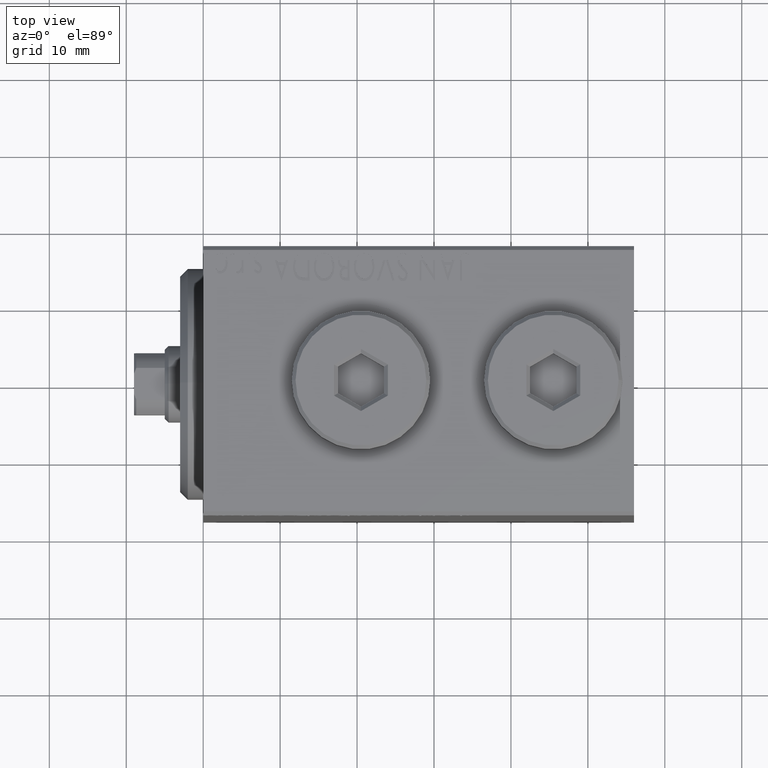
[diagram: clean part render]
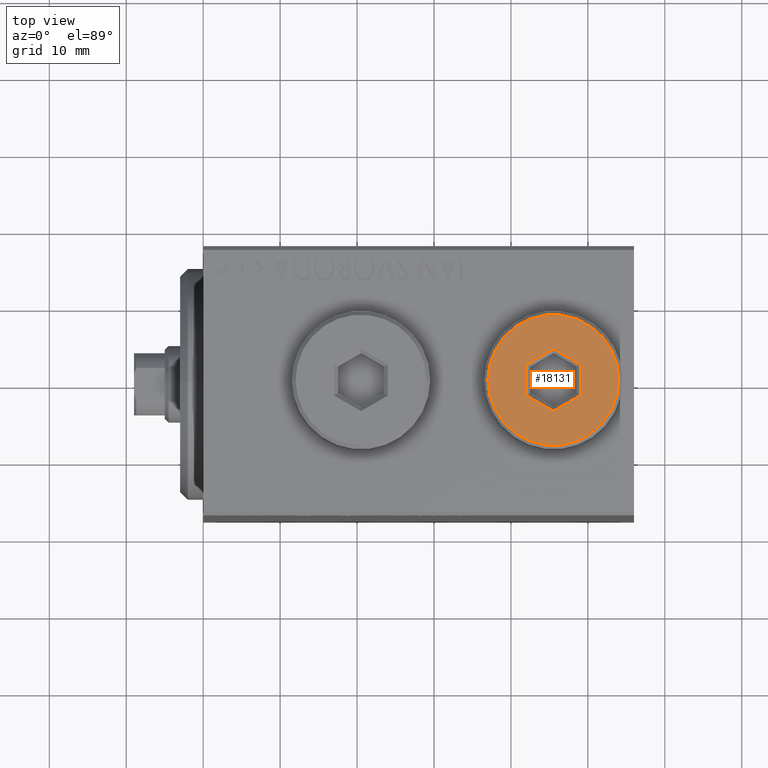
[diagram: same view with one face highlighted and labeled with its STEP entity id]
A machine part, top view. The second image highlights one B-rep face of the part: STEP entity #18131.
In plain terms, the highlighted planar face has unit normal (0, 0, 1).
Its self-contained STEP definition (entity closure, byte-faithful):
#37 = EDGE_CURVE ( 'NONE', #34937, #13470, #6507, .T. ) ;
#1079 = EDGE_CURVE ( 'NONE', #42843, #16736, #8641, .T. ) ;
#1861 = DIRECTION ( 'NONE',  ( 0.000000000000000000, 0.000000000000000000, 1.000000000000000000 ) ) ;
#2367 = DIRECTION ( 'NONE',  ( -0.8660254037844387076, -0.4999999999999998890, 0.000000000000000000 ) ) ;
#2932 = CARTESIAN_POINT ( 'NONE',  ( -3.500000000000006661, -2.020725942163694278, 5.000000000000000000 ) ) ;
#3833 = EDGE_CURVE ( 'NONE', #11174, #34937, #23308, .T. ) ;
#4414 = CARTESIAN_POINT ( 'NONE',  ( 3.500000000000006661, -1.732050807568878303, 5.000000000000000000 ) ) ;
#4743 = CARTESIAN_POINT ( 'NONE',  ( 3.250000000000003109, 2.165063509461103042, 5.000000000000000000 ) ) ;
#5221 = VECTOR ( 'NONE', #27134, 1000.000000000000000 ) ;
#6005 = VECTOR ( 'NONE', #38191, 1000.000000000000000 ) ;
#6507 = LINE ( 'NONE', #16859, #45453 ) ;
#6995 = CIRCLE ( 'NONE', #31988, 8.500000000000010658 ) ;
#7293 = EDGE_CURVE ( 'NONE', #21982, #10452, #18066, .T. ) ;
#8641 = LINE ( 'NONE', #4743, #42199 ) ;
#8760 = CARTESIAN_POINT ( 'NONE',  ( 1.590596867181068292E-15, 4.041451884327386779, 5.000000000000000000 ) ) ;
#8797 = EDGE_LOOP ( 'NONE', ( #18985, #16191 ) ) ;
#9279 = AXIS2_PLACEMENT_3D ( 'NONE', #45505, #38354, #13972 ) ;
#10452 = VERTEX_POINT ( 'NONE', #21343 ) ;
#11174 = VERTEX_POINT ( 'NONE', #23508 ) ;
#11535 = LINE ( 'NONE', #4414, #30736 ) ;
#11546 = DIRECTION ( 'NONE',  ( 0.000000000000000000, 0.000000000000000000, 1.000000000000000000 ) ) ;
#12094 = DIRECTION ( 'NONE',  ( 0.8660254037844387076, -0.4999999999999998890, 0.000000000000000000 ) ) ;
#12217 = FACE_OUTER_BOUND ( 'NONE', #8797, .T. ) ;
#13108 = LINE ( 'NONE', #27820, #5221 ) ;
#13470 = VERTEX_POINT ( 'NONE', #2932 ) ;
#13972 = DIRECTION ( 'NONE',  ( 1.000000000000000000, 0.000000000000000000, 0.000000000000000000 ) ) ;
#15667 = FACE_BOUND ( 'NONE', #42103, .T. ) ;
#15678 = ORIENTED_EDGE ( 'NONE', *, *, #3833, .T. ) ;
#15905 = EDGE_CURVE ( 'NONE', #16736, #11174, #11535, .T. ) ;
#16191 = ORIENTED_EDGE ( 'NONE', *, *, #44566, .T. ) ;
#16736 = VERTEX_POINT ( 'NONE', #26534 ) ;
#16852 = CARTESIAN_POINT ( 'NONE',  ( 0.2500000000000027756, -3.897114317029979347, 5.000000000000000000 ) ) ;
#16859 = CARTESIAN_POINT ( 'NONE',  ( -3.250000000000003109, -2.165063509461102598, 5.000000000000000000 ) ) ;
#18066 = CIRCLE ( 'NONE', #9279, 8.500000000000010658 ) ;
#18131 = ADVANCED_FACE ( 'NONE', ( #15667, #12217 ), #29702, .T. ) ;
#18887 = DIRECTION ( 'NONE',  ( 0.000000000000000000, -1.000000000000000000, 0.000000000000000000 ) ) ;
#18985 = ORIENTED_EDGE ( 'NONE', *, *, #7293, .T. ) ;
#19023 = CARTESIAN_POINT ( 'NONE',  ( -8.500000000000010658, 0.000000000000000000, 5.000000000000000000 ) ) ;
#20469 = CARTESIAN_POINT ( 'NONE',  ( -0.2500000000000027756, 3.897114317029978459, 5.000000000000000000 ) ) ;
#21343 = CARTESIAN_POINT ( 'NONE',  ( 8.500000000000010658, 1.071565949253934716E-15, 5.000000000000000000 ) ) ;
#21982 = VERTEX_POINT ( 'NONE', #19023 ) ;
#21986 = CARTESIAN_POINT ( 'NONE',  ( -1.006139216460143630E-15, -4.041451884327387667, 5.000000000000000000 ) ) ;
#23308 = LINE ( 'NONE', #16852, #37829 ) ;
#23508 = CARTESIAN_POINT ( 'NONE',  ( 3.500000000000006661, -2.020725942163693833, 5.000000000000000000 ) ) ;
#25590 = DIRECTION ( 'NONE',  ( 1.000000000000000000, 0.000000000000000000, 0.000000000000000000 ) ) ;
#26230 = ORIENTED_EDGE ( 'NONE', *, *, #28345, .T. ) ;
#26534 = CARTESIAN_POINT ( 'NONE',  ( 3.500000000000006661, 2.020725942163694722, 5.000000000000000000 ) ) ;
#27134 = DIRECTION ( 'NONE',  ( 0.000000000000000000, 1.000000000000000000, 0.000000000000000000 ) ) ;
#27820 = CARTESIAN_POINT ( 'NONE',  ( -3.500000000000006661, 1.732050807568878081, 5.000000000000000000 ) ) ;
#27992 = ORIENTED_EDGE ( 'NONE', *, *, #37, .T. ) ;
#28345 = EDGE_CURVE ( 'NONE', #13470, #40351, #13108, .T. ) ;
#28886 = ORIENTED_EDGE ( 'NONE', *, *, #30378, .T. ) ;
#29702 = PLANE ( 'NONE',  #42539 ) ;
#30105 = ORIENTED_EDGE ( 'NONE', *, *, #1079, .T. ) ;
#30378 = EDGE_CURVE ( 'NONE', #40351, #42843, #37969, .T. ) ;
#30736 = VECTOR ( 'NONE', #18887, 1000.000000000000000 ) ;
#31988 = AXIS2_PLACEMENT_3D ( 'NONE', #32487, #11546, #25590 ) ;
#32487 = CARTESIAN_POINT ( 'NONE',  ( 0.000000000000000000, 0.000000000000000000, 5.000000000000000000 ) ) ;
#33378 = CARTESIAN_POINT ( 'NONE',  ( 0.000000000000000000, 0.000000000000000000, 5.000000000000000000 ) ) ;
#34937 = VERTEX_POINT ( 'NONE', #21986 ) ;
#37289 = ORIENTED_EDGE ( 'NONE', *, *, #15905, .T. ) ;
#37829 = VECTOR ( 'NONE', #2367, 1000.000000000000000 ) ;
#37969 = LINE ( 'NONE', #20469, #6005 ) ;
#38191 = DIRECTION ( 'NONE',  ( 0.8660254037844387076, 0.4999999999999998335, 0.000000000000000000 ) ) ;
#38354 = DIRECTION ( 'NONE',  ( 0.000000000000000000, 0.000000000000000000, 1.000000000000000000 ) ) ;
#40351 = VERTEX_POINT ( 'NONE', #43216 ) ;
#42103 = EDGE_LOOP ( 'NONE', ( #26230, #28886, #30105, #37289, #15678, #27992 ) ) ;
#42199 = VECTOR ( 'NONE', #12094, 1000.000000000000000 ) ;
#42539 = AXIS2_PLACEMENT_3D ( 'NONE', #33378, #1861, #43744 ) ;
#42843 = VERTEX_POINT ( 'NONE', #8760 ) ;
#43216 = CARTESIAN_POINT ( 'NONE',  ( -3.500000000000006661, 2.020725942163692945, 5.000000000000000000 ) ) ;
#43744 = DIRECTION ( 'NONE',  ( 1.000000000000000000, 0.000000000000000000, -0.000000000000000000 ) ) ;
#44566 = EDGE_CURVE ( 'NONE', #10452, #21982, #6995, .T. ) ;
#44949 = DIRECTION ( 'NONE',  ( -0.8660254037844385966, 0.4999999999999999445, 0.000000000000000000 ) ) ;
#45453 = VECTOR ( 'NONE', #44949, 1000.000000000000114 ) ;
#45505 = CARTESIAN_POINT ( 'NONE',  ( 0.000000000000000000, 0.000000000000000000, 5.000000000000000000 ) ) ;